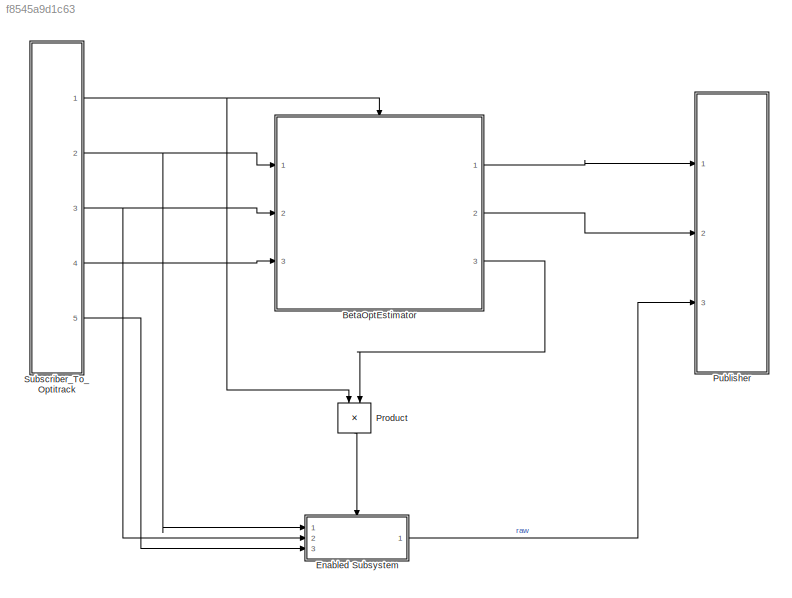
MODEL slx_f8545a9d1c63
KIND model
CONFIG AbsTol = auto
CONFIG EnableMultiTasking = off
CONFIG FixedStep = 1/150
CONFIG InitFcn = state_estimator_opt_driftingcar_callback
CONFIG MaxStep = auto
CONFIG MinStep = auto
CONFIG RelTol = 1e-3
CONFIG SampleTimeConstraint = Unconstrained
CONFIG Solver = FixedStepAuto
CONFIG SolverName = FixedStepAuto
CONFIG StartTime = 0.0
CONFIG StopTime = inf
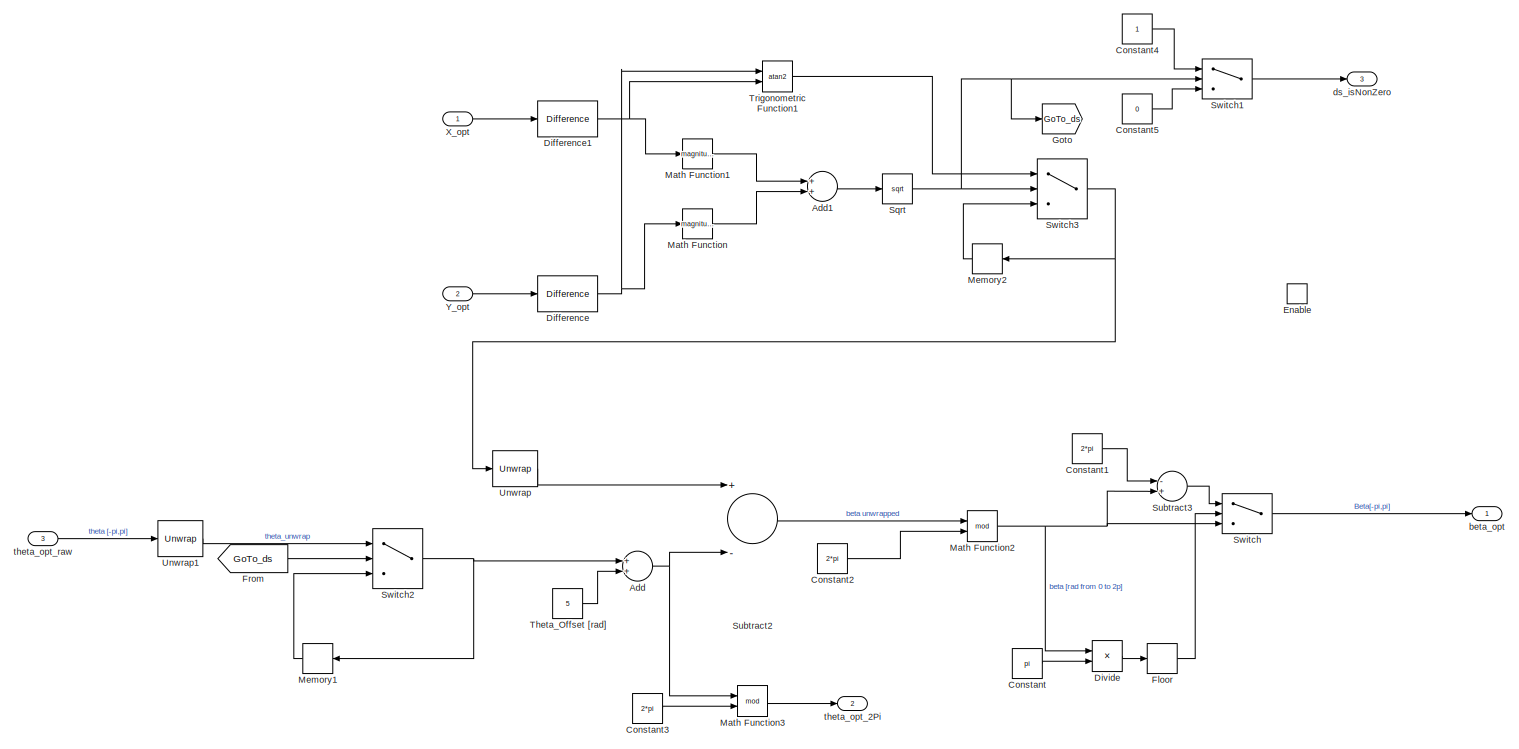
[diagram: BetaOptEstimator - part 1/1, most of the canvas]
BLOCK [SubSystem] BetaOptEstimator
  Ports = [3, 3, 1]
  RequestExecContextInheritance = off
  Variant = off
BLOCK [Sum] BetaOptEstimator/Add
  InputSameDT = off
  OutDataTypeStr = Inherit: Inherit via internal rule
  Ports = [2, 1]
  SaturateOnIntegerOverflow = off
BLOCK [Sum] BetaOptEstimator/Add1
  InputSameDT = off
  OutDataTypeStr = Inherit: Inherit via internal rule
  Ports = [2, 1]
  SaturateOnIntegerOverflow = off
BLOCK [Constant] BetaOptEstimator/Constant
  Value = pi
BLOCK [Constant] BetaOptEstimator/Constant1
  Value = 2*pi
BLOCK [Constant] BetaOptEstimator/Constant2
  Value = 2*pi
BLOCK [Constant] BetaOptEstimator/Constant3
  Value = 2*pi
BLOCK [Constant] BetaOptEstimator/Constant4
BLOCK [Constant] BetaOptEstimator/Constant5
  Value = 0
BLOCK [Reference] BetaOptEstimator/Difference  REF=simulink/Discrete/Difference
  Ports = [1, 1]
  SourceBlock = simulink/Discrete/Difference
  SourceProductBaseCode = SL
  SourceProductName = Simulink
  SourceType = Difference
BLOCK [Reference] BetaOptEstimator/Difference1  REF=simulink/Discrete/Difference
  Ports = [1, 1]
  SourceBlock = simulink/Discrete/Difference
  SourceProductBaseCode = SL
  SourceProductName = Simulink
  SourceType = Difference
BLOCK [Product] BetaOptEstimator/Divide
  InputSameDT = off
  Inputs = */
  OutDataTypeStr = Inherit: Inherit via internal rule
  Ports = [2, 1]
  RndMeth = Floor
  SaturateOnIntegerOverflow = off
BLOCK [EnablePort] BetaOptEstimator/Enable
  Ports = []
BLOCK [Rounding] BetaOptEstimator/Floor
BLOCK [From] BetaOptEstimator/From
  GotoTag = GoTo_ds
  TagVisibility = global
BLOCK [Goto] BetaOptEstimator/Goto
  GotoTag = GoTo_ds
  TagVisibility = global
BLOCK [Math] BetaOptEstimator/Math Function
  Operator = magnitude^2
  Ports = [1, 1]
BLOCK [Math] BetaOptEstimator/Math Function1
  Operator = magnitude^2
  Ports = [1, 1]
BLOCK [Math] BetaOptEstimator/Math Function2
  Operator = mod
  Ports = [2, 1]
BLOCK [Math] BetaOptEstimator/Math Function3
  Operator = mod
  Ports = [2, 1]
BLOCK [Memory] BetaOptEstimator/Memory1
BLOCK [Memory] BetaOptEstimator/Memory2
BLOCK [Sqrt] BetaOptEstimator/Sqrt
BLOCK [Sum] BetaOptEstimator/Subtract2
  InputSameDT = off
  Inputs = +-
  OutDataTypeStr = Inherit: Inherit via internal rule
  Ports = [2, 1]
  SaturateOnIntegerOverflow = off
BLOCK [Sum] BetaOptEstimator/Subtract3
  InputSameDT = off
  Inputs = -+
  OutDataTypeStr = Inherit: Inherit via internal rule
  Ports = [2, 1]
  SaturateOnIntegerOverflow = off
BLOCK [Switch] BetaOptEstimator/Switch
  InputSameDT = off
  SaturateOnIntegerOverflow = off
  Threshold = 1
BLOCK [Switch] BetaOptEstimator/Switch1
  Criteria = u2 > Threshold
  InputSameDT = off
  SaturateOnIntegerOverflow = off
  Threshold = ds_nonzero_threshold
BLOCK [Switch] BetaOptEstimator/Switch2
  Criteria = u2 > Threshold
  InputSameDT = off
  SaturateOnIntegerOverflow = off
  Threshold = ds_nonzero_threshold
BLOCK [Switch] BetaOptEstimator/Switch3
  Criteria = u2 > Threshold
  InputSameDT = off
  SaturateOnIntegerOverflow = off
  Threshold = ds_nonzero_threshold
BLOCK [Constant] BetaOptEstimator/Theta_Offset [rad]
  Value = 5
BLOCK [Trigonometry] BetaOptEstimator/Trigonometric Function1
  Operator = atan2
  Ports = [2, 1]
BLOCK [Reference] BetaOptEstimator/Unwrap  REF=dspsigops/Unwrap
  Ports = [1, 1]
  SourceBlock = dspsigops/Unwrap
  SourceProductBaseCode = DS
  SourceProductName = DSP System Toolbox
  SourceType = Unwrap
  UserDataPersistent = on
BLOCK [Reference] BetaOptEstimator/Unwrap1  REF=dspsigops/Unwrap
  Ports = [1, 1]
  SourceBlock = dspsigops/Unwrap
  SourceProductBaseCode = DS
  SourceProductName = DSP System Toolbox
  SourceType = Unwrap
  UserDataPersistent = on
BLOCK [Inport] BetaOptEstimator/X_opt
  IconDisplay = Port number
BLOCK [Inport] BetaOptEstimator/Y_opt
  IconDisplay = Port number
  Port = 2
BLOCK [Outport] BetaOptEstimator/beta_opt
  IconDisplay = Port number
BLOCK [Outport] BetaOptEstimator/ds_isNonZero
  IconDisplay = Port number
  Port = 3
BLOCK [Outport] BetaOptEstimator/theta_opt_2Pi
  IconDisplay = Port number
  Port = 2
BLOCK [Inport] BetaOptEstimator/theta_opt_raw
  IconDisplay = Port number
  Port = 3
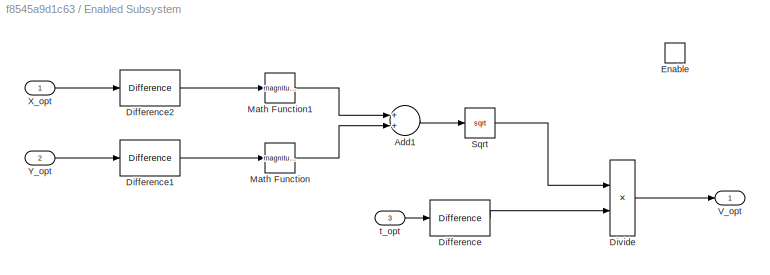
BLOCK [SubSystem] Enabled Subsystem
  Ports = [3, 1, 1]
  RequestExecContextInheritance = off
  TreatAsAtomicUnit = on
  Variant = off
BLOCK [Sum] Enabled Subsystem/Add1
  InputSameDT = off
  OutDataTypeStr = Inherit: Inherit via internal rule
  Ports = [2, 1]
  SaturateOnIntegerOverflow = off
BLOCK [Reference] Enabled Subsystem/Difference  REF=simulink/Discrete/Difference
  Ports = [1, 1]
  SourceBlock = simulink/Discrete/Difference
  SourceProductBaseCode = SL
  SourceProductName = Simulink
  SourceType = Difference
BLOCK [Reference] Enabled Subsystem/Difference1  REF=simulink/Discrete/Difference
  Ports = [1, 1]
  SourceBlock = simulink/Discrete/Difference
  SourceProductBaseCode = SL
  SourceProductName = Simulink
  SourceType = Difference
BLOCK [Reference] Enabled Subsystem/Difference2  REF=simulink/Discrete/Difference
  Ports = [1, 1]
  SourceBlock = simulink/Discrete/Difference
  SourceProductBaseCode = SL
  SourceProductName = Simulink
  SourceType = Difference
BLOCK [Product] Enabled Subsystem/Divide
  InputSameDT = off
  Inputs = */
  OutDataTypeStr = Inherit: Inherit via internal rule
  Ports = [2, 1]
  RndMeth = Floor
  SaturateOnIntegerOverflow = off
BLOCK [EnablePort] Enabled Subsystem/Enable
  Ports = []
BLOCK [Math] Enabled Subsystem/Math Function
  Operator = magnitude^2
  Ports = [1, 1]
BLOCK [Math] Enabled Subsystem/Math Function1
  Operator = magnitude^2
  Ports = [1, 1]
BLOCK [Sqrt] Enabled Subsystem/Sqrt
BLOCK [Outport] Enabled Subsystem/V_opt
  IconDisplay = Port number
BLOCK [Inport] Enabled Subsystem/X_opt
  IconDisplay = Port number
BLOCK [Inport] Enabled Subsystem/Y_opt
  IconDisplay = Port number
  Port = 2
BLOCK [Inport] Enabled Subsystem/t_opt
  IconDisplay = Port number
  Port = 3
BLOCK [Product] Product
  InputSameDT = off
  OutDataTypeStr = Inherit: Inherit via internal rule
  Ports = [2, 1]
  RndMeth = Floor
  SaturateOnIntegerOverflow = off
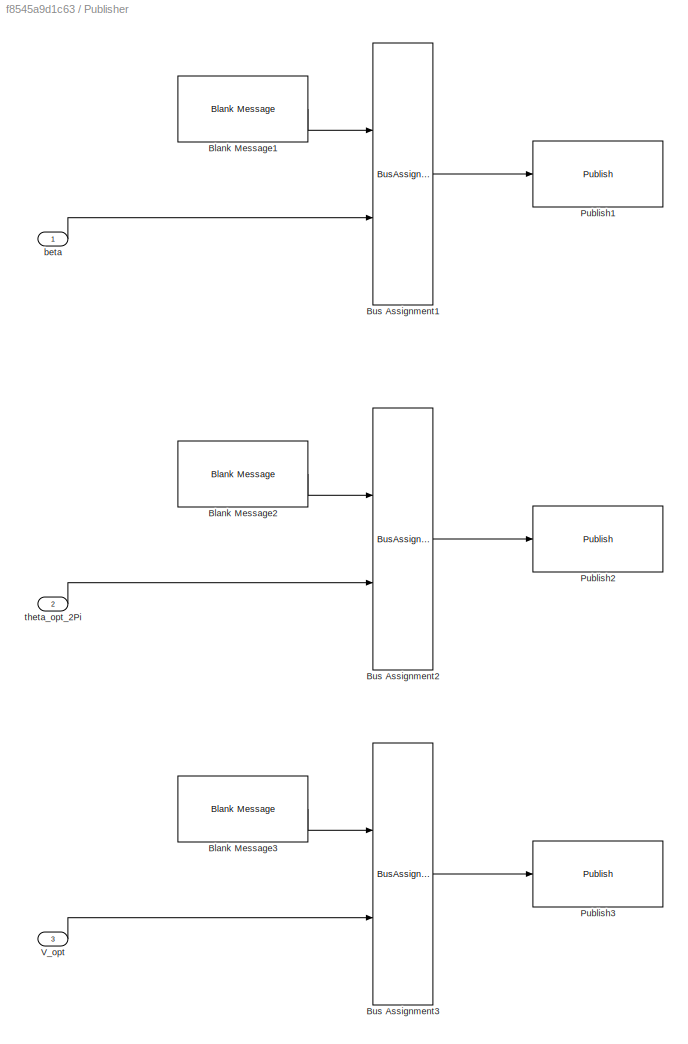
BLOCK [SubSystem] Publisher
  Ports = [3]
  RequestExecContextInheritance = off
  Variant = off
BLOCK [Reference] Publisher/Blank Message1  REF=robotlib/Blank Message
  Ports = [0, 1]
  SourceBlock = robotlib/Blank Message
  SourceLibraryInfo = This block requires Robotics System Toolbox
  SourceProductBaseCode = RO
  SourceProductName = Robotics System Toolbox
  SourceType = ROS Blank Message
BLOCK [Reference] Publisher/Blank Message2  REF=robotlib/Blank Message
  Ports = [0, 1]
  SourceBlock = robotlib/Blank Message
  SourceLibraryInfo = This block requires Robotics System Toolbox
  SourceProductBaseCode = RO
  SourceProductName = Robotics System Toolbox
  SourceType = ROS Blank Message
BLOCK [Reference] Publisher/Blank Message3  REF=robotlib/Blank Message
  Ports = [0, 1]
  SourceBlock = robotlib/Blank Message
  SourceLibraryInfo = This block requires Robotics System Toolbox
  SourceProductBaseCode = RO
  SourceProductName = Robotics System Toolbox
  SourceType = ROS Blank Message
BLOCK [BusAssignment] Publisher/Bus Assignment1
  AssignedSignals = Data
  Ports = [2, 1]
BLOCK [BusAssignment] Publisher/Bus Assignment2
  AssignedSignals = Data
  Ports = [2, 1]
BLOCK [BusAssignment] Publisher/Bus Assignment3
  AssignedSignals = Data
  Ports = [2, 1]
BLOCK [Reference] Publisher/Publish1  REF=robotlib/Publish
  Ports = [1]
  SourceBlock = robotlib/Publish
  SourceLibraryInfo = This block requires Robotics System Toolbox
  SourceProductBaseCode = RO
  SourceProductName = Robotics System Toolbox
  SourceType = ROS Publish
BLOCK [Reference] Publisher/Publish2  REF=robotlib/Publish
  Ports = [1]
  SourceBlock = robotlib/Publish
  SourceLibraryInfo = This block requires Robotics System Toolbox
  SourceProductBaseCode = RO
  SourceProductName = Robotics System Toolbox
  SourceType = ROS Publish
BLOCK [Reference] Publisher/Publish3  REF=robotlib/Publish
  Ports = [1]
  SourceBlock = robotlib/Publish
  SourceLibraryInfo = This block requires Robotics System Toolbox
  SourceProductBaseCode = RO
  SourceProductName = Robotics System Toolbox
  SourceType = ROS Publish
BLOCK [Inport] Publisher/V_opt
  IconDisplay = Port number
  Port = 3
BLOCK [Inport] Publisher/beta
  IconDisplay = Port number
BLOCK [Inport] Publisher/theta_opt_2Pi
  IconDisplay = Port number
  Port = 2
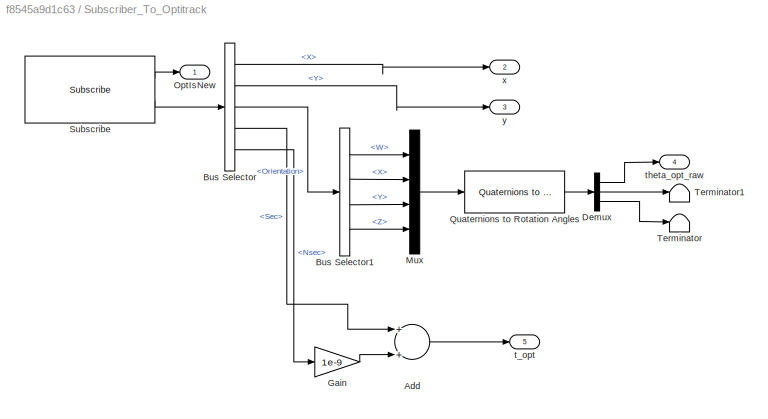
BLOCK [SubSystem] Subscriber_To_Optitrack
  Ports = [0, 5]
  RequestExecContextInheritance = off
  Variant = off
BLOCK [Sum] Subscriber_To_Optitrack/Add
  InputSameDT = off
  OutDataTypeStr = Inherit: Inherit via internal rule
  Ports = [2, 1]
  SaturateOnIntegerOverflow = off
BLOCK [BusSelector] Subscriber_To_Optitrack/Bus Selector
  OutputAsBus = off
  OutputSignals = Pose.Position.X,Pose.Position.Y,Pose.Orientation,Header.Stamp.Sec,Header.Stamp.Nsec
  Ports = [1, 5]
BLOCK [BusSelector] Subscriber_To_Optitrack/Bus Selector1
  OutputAsBus = off
  OutputSignals = W,X,Y,Z
  Ports = [1, 4]
BLOCK [Demux] Subscriber_To_Optitrack/Demux
  DisplayOption = bar
  Outputs = 3
  Ports = [1, 3]
BLOCK [Gain] Subscriber_To_Optitrack/Gain
  Gain = 1e-9
  OutDataTypeStr = Inherit: Inherit via internal rule
  ParamDataTypeStr = Inherit: Inherit via internal rule
  SaturateOnIntegerOverflow = off
BLOCK [Mux] Subscriber_To_Optitrack/Mux
  DisplayOption = bar
  Ports = [4, 1]
BLOCK [Outport] Subscriber_To_Optitrack/OptIsNew
  IconDisplay = Port number
BLOCK [Reference] Subscriber_To_Optitrack/Quaternions to Rotation Angles  REF=sharedtransform/Quaternions to Rotation Angles
  AttributesFormatString = Rotation Order: %<rotationOrder>
  Ports = [1, 1]
  SourceBlock = sharedtransform/Quaternions to Rotation Angles
  SourceType = Quat2Ang
BLOCK [Reference] Subscriber_To_Optitrack/Subscribe  REF=robotlib/Subscribe
  Ports = [0, 2]
  SourceBlock = robotlib/Subscribe
  SourceLibraryInfo = This block requires Robotics System Toolbox
  SourceProductBaseCode = RO
  SourceProductName = Robotics System Toolbox
  SourceType = ROS Subscribe
BLOCK [Terminator] Subscriber_To_Optitrack/Terminator
BLOCK [Terminator] Subscriber_To_Optitrack/Terminator1
BLOCK [Outport] Subscriber_To_Optitrack/t_opt
  IconDisplay = Port number
  Port = 5
BLOCK [Outport] Subscriber_To_Optitrack/theta_opt_raw
  IconDisplay = Port number
  Port = 4
BLOCK [Outport] Subscriber_To_Optitrack/x
  IconDisplay = Port number
  Port = 2
BLOCK [Outport] Subscriber_To_Optitrack/y
  IconDisplay = Port number
  Port = 3
LINE BetaOptEstimator/Add1:1 -> BetaOptEstimator/Sqrt:1
NET BetaOptEstimator/Add:1 -> BetaOptEstimator/Math Function3:1, BetaOptEstimator/Subtract2:2
LINE BetaOptEstimator/Constant1:1 -> BetaOptEstimator/Subtract3:1
LINE BetaOptEstimator/Constant2:1 -> BetaOptEstimator/Math Function2:2
LINE BetaOptEstimator/Constant3:1 -> BetaOptEstimator/Math Function3:2
LINE BetaOptEstimator/Constant4:1 -> BetaOptEstimator/Switch1:1
LINE BetaOptEstimator/Constant5:1 -> BetaOptEstimator/Switch1:3
LINE BetaOptEstimator/Constant:1 -> BetaOptEstimator/Divide:2
NET BetaOptEstimator/Difference1:1 -> BetaOptEstimator/Math Function1:1, BetaOptEstimator/Trigonometric Function1:2
NET BetaOptEstimator/Difference:1 -> BetaOptEstimator/Math Function:1, BetaOptEstimator/Trigonometric Function1:1
LINE BetaOptEstimator/Divide:1 -> BetaOptEstimator/Floor:1
LINE BetaOptEstimator/Floor:1 -> BetaOptEstimator/Switch:2
LINE BetaOptEstimator/From:1 -> BetaOptEstimator/Switch2:2
LINE BetaOptEstimator/Math Function1:1 -> BetaOptEstimator/Add1:1
NET BetaOptEstimator/Math Function2:1 -> BetaOptEstimator/Divide:1, BetaOptEstimator/Subtract3:2, BetaOptEstimator/Switch:3
LINE BetaOptEstimator/Math Function3:1 -> BetaOptEstimator/theta_opt_2Pi:1
LINE BetaOptEstimator/Math Function:1 -> BetaOptEstimator/Add1:2
LINE BetaOptEstimator/Memory1:1 -> BetaOptEstimator/Switch2:3
LINE BetaOptEstimator/Memory2:1 -> BetaOptEstimator/Switch3:3
NET BetaOptEstimator/Sqrt:1 -> BetaOptEstimator/Goto:1, BetaOptEstimator/Switch1:2, BetaOptEstimator/Switch3:2
LINE BetaOptEstimator/Subtract2:1 -> BetaOptEstimator/Math Function2:1
LINE BetaOptEstimator/Subtract3:1 -> BetaOptEstimator/Switch:1
LINE BetaOptEstimator/Switch1:1 -> BetaOptEstimator/ds_isNonZero:1
NET BetaOptEstimator/Switch2:1 -> BetaOptEstimator/Add:1, BetaOptEstimator/Memory1:1
NET BetaOptEstimator/Switch3:1 -> BetaOptEstimator/Memory2:1, BetaOptEstimator/Unwrap:1
LINE BetaOptEstimator/Switch:1 -> BetaOptEstimator/beta_opt:1
LINE BetaOptEstimator/Theta_Offset [rad]:1 -> BetaOptEstimator/Add:2
LINE BetaOptEstimator/Trigonometric Function1:1 -> BetaOptEstimator/Switch3:1
LINE BetaOptEstimator/Unwrap1:1 -> BetaOptEstimator/Switch2:1
LINE BetaOptEstimator/Unwrap:1 -> BetaOptEstimator/Subtract2:1
LINE BetaOptEstimator/X_opt:1 -> BetaOptEstimator/Difference1:1
LINE BetaOptEstimator/Y_opt:1 -> BetaOptEstimator/Difference:1
LINE BetaOptEstimator/theta_opt_raw:1 -> BetaOptEstimator/Unwrap1:1
LINE BetaOptEstimator:1 -> Publisher:1
LINE BetaOptEstimator:2 -> Publisher:2
LINE BetaOptEstimator:3 -> Product:2
LINE Enabled Subsystem/Add1:1 -> Enabled Subsystem/Sqrt:1
LINE Enabled Subsystem/Difference1:1 -> Enabled Subsystem/Math Function:1
LINE Enabled Subsystem/Difference2:1 -> Enabled Subsystem/Math Function1:1
LINE Enabled Subsystem/Difference:1 -> Enabled Subsystem/Divide:2
LINE Enabled Subsystem/Divide:1 -> Enabled Subsystem/V_opt:1
LINE Enabled Subsystem/Math Function1:1 -> Enabled Subsystem/Add1:1
LINE Enabled Subsystem/Math Function:1 -> Enabled Subsystem/Add1:2
LINE Enabled Subsystem/Sqrt:1 -> Enabled Subsystem/Divide:1
LINE Enabled Subsystem/X_opt:1 -> Enabled Subsystem/Difference2:1
LINE Enabled Subsystem/Y_opt:1 -> Enabled Subsystem/Difference1:1
LINE Enabled Subsystem/t_opt:1 -> Enabled Subsystem/Difference:1
LINE Enabled Subsystem:1 -> Publisher:3
LINE Product:1 -> Enabled Subsystem:enable
LINE Publisher/Blank Message1:1 -> Publisher/Bus Assignment1:1
LINE Publisher/Blank Message2:1 -> Publisher/Bus Assignment2:1
LINE Publisher/Blank Message3:1 -> Publisher/Bus Assignment3:1
LINE Publisher/Bus Assignment1:1 -> Publisher/Publish1:1
LINE Publisher/Bus Assignment2:1 -> Publisher/Publish2:1
LINE Publisher/Bus Assignment3:1 -> Publisher/Publish3:1
LINE Publisher/V_opt:1 -> Publisher/Bus Assignment3:2
LINE Publisher/beta:1 -> Publisher/Bus Assignment1:2
LINE Publisher/theta_opt_2Pi:1 -> Publisher/Bus Assignment2:2
LINE Subscriber_To_Optitrack/Add:1 -> Subscriber_To_Optitrack/t_opt:1
LINE Subscriber_To_Optitrack/Bus Selector1:1 -> Subscriber_To_Optitrack/Mux:1
LINE Subscriber_To_Optitrack/Bus Selector1:2 -> Subscriber_To_Optitrack/Mux:2
LINE Subscriber_To_Optitrack/Bus Selector1:3 -> Subscriber_To_Optitrack/Mux:3
LINE Subscriber_To_Optitrack/Bus Selector1:4 -> Subscriber_To_Optitrack/Mux:4
LINE Subscriber_To_Optitrack/Bus Selector:1 -> Subscriber_To_Optitrack/x:1
LINE Subscriber_To_Optitrack/Bus Selector:2 -> Subscriber_To_Optitrack/y:1
LINE Subscriber_To_Optitrack/Bus Selector:3 -> Subscriber_To_Optitrack/Bus Selector1:1
LINE Subscriber_To_Optitrack/Bus Selector:4 -> Subscriber_To_Optitrack/Add:1
LINE Subscriber_To_Optitrack/Bus Selector:5 -> Subscriber_To_Optitrack/Gain:1
LINE Subscriber_To_Optitrack/Demux:1 -> Subscriber_To_Optitrack/theta_opt_raw:1
LINE Subscriber_To_Optitrack/Demux:2 -> Subscriber_To_Optitrack/Terminator1:1
LINE Subscriber_To_Optitrack/Demux:3 -> Subscriber_To_Optitrack/Terminator:1
LINE Subscriber_To_Optitrack/Gain:1 -> Subscriber_To_Optitrack/Add:2
LINE Subscriber_To_Optitrack/Mux:1 -> Subscriber_To_Optitrack/Quaternions to Rotation Angles:1
LINE Subscriber_To_Optitrack/Quaternions to Rotation Angles:1 -> Subscriber_To_Optitrack/Demux:1
LINE Subscriber_To_Optitrack/Subscribe:1 -> Subscriber_To_Optitrack/OptIsNew:1
LINE Subscriber_To_Optitrack/Subscribe:2 -> Subscriber_To_Optitrack/Bus Selector:1
NET Subscriber_To_Optitrack:1 -> BetaOptEstimator:enable, Product:1
NET Subscriber_To_Optitrack:2 -> BetaOptEstimator:1, Enabled Subsystem:1
NET Subscriber_To_Optitrack:3 -> BetaOptEstimator:2, Enabled Subsystem:2
LINE Subscriber_To_Optitrack:4 -> BetaOptEstimator:3
LINE Subscriber_To_Optitrack:5 -> Enabled Subsystem:3
note: NET lines group one-source signal fan-out (src -> all destinations, sorted); 1:1 wires keep LINE
